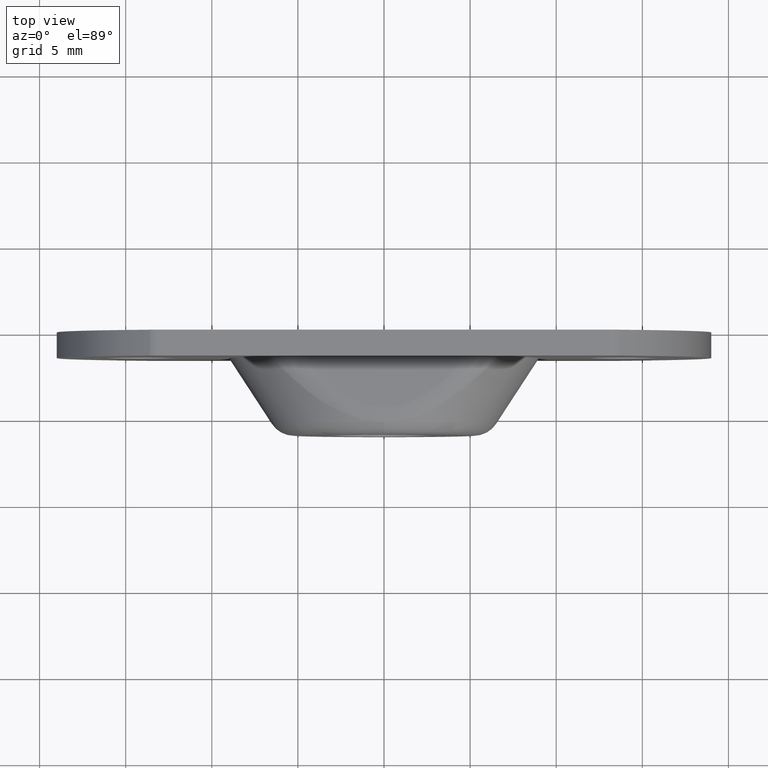
[diagram: clean part render]
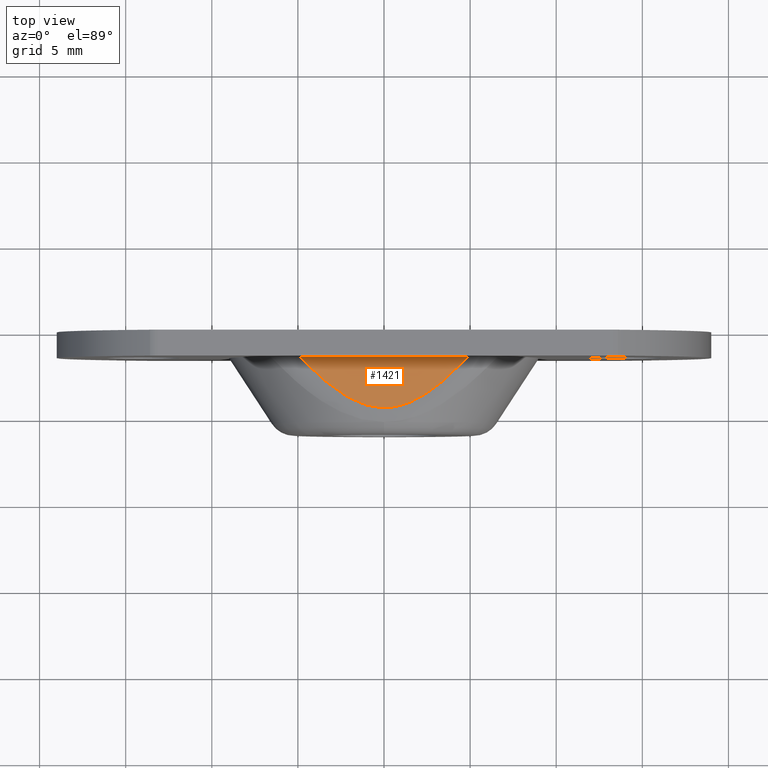
[diagram: same view with one face highlighted and labeled with its STEP entity id]
A machine part, top view. The second image highlights one B-rep face of the part: STEP entity #1421.
In plain terms, the highlighted planar face has unit normal (0, 0, 1).
Its self-contained STEP definition (entity closure, byte-faithful):
#9 = CARTESIAN_POINT ( 'NONE',  ( 1.906441237978952600, -4.012970140659631600, 6.750000000000002700 ) ) ;
#63 = ORIENTED_EDGE ( 'NONE', *, *, #271, .F. ) ;
#98 = CARTESIAN_POINT ( 'NONE',  ( -2.336191753414337900, -3.756723234469199200, 6.750000000000000900 ) ) ;
#124 = CARTESIAN_POINT ( 'NONE',  ( 3.140643309498446300, -3.187137751884457200, 6.750000000000000900 ) ) ;
#160 = B_SPLINE_CURVE_WITH_KNOTS ( 'NONE', 3,
 ( #979, #1100, #659, #1439, #765, #98, #353, #1008, #343, #1126, #455, #1233, #567, #1344, #680, #9, #790, #124, #896, #236, #1013, #349 ),
 .UNSPECIFIED., .F., .F.,
 ( 4, 2, 2, 2, 2, 2, 2, 2, 2, 2, 4 ),
 ( 1.388456241783856500E-018, 0.001484628465371410500, 0.002969256930742819600, 0.004453885396114229400, 0.005196199628799934300, 0.005938513861485638300, 0.006680828094171343200, 0.007423142326857048100, 0.008907770792228457100, 0.01039239925759986900, 0.01187702772297127800 ),
 .UNSPECIFIED. ) ;
#216 = DIRECTION ( 'NONE',  ( 0.0000000000000000000, 0.0000000000000000000, 1.000000000000000000 ) ) ;
#236 = CARTESIAN_POINT ( 'NONE',  ( 4.248482275594736500, -2.206582111265753500, 6.750000000000001800 ) ) ;
#271 = EDGE_CURVE ( 'NONE', #545, #816, #572, .T. ) ;
#315 = VECTOR ( 'NONE', #848, 1000.000000000000000 ) ;
#331 = ORIENTED_EDGE ( 'NONE', *, *, #1227, .T. ) ;
#343 = CARTESIAN_POINT ( 'NONE',  ( -0.9758463632488154600, -4.370451779888761700, 6.750000000000000900 ) ) ;
#349 = CARTESIAN_POINT ( 'NONE',  ( 4.939806075597530800, -1.499999999992952100, 6.750000000000000000 ) ) ;
#353 = CARTESIAN_POINT ( 'NONE',  ( -1.905688575810681000, -4.013829924311902900, 6.750000000000001800 ) ) ;
#455 = CARTESIAN_POINT ( 'NONE',  ( -0.2451819812851589500, -4.500266225722195500, 6.750000000000000900 ) ) ;
#540 = CARTESIAN_POINT ( 'NONE',  ( -4.939806075597539700, -1.499999999992952100, 6.750000000000000000 ) ) ;
#545 = VERTEX_POINT ( 'NONE', #540 ) ;
#552 = PLANE ( 'NONE',  #573 ) ;
#567 = CARTESIAN_POINT ( 'NONE',  ( 0.4974678146695057900, -4.472281264067278000, 6.750000000000000900 ) ) ;
#572 = LINE ( 'NONE', #963, #315 ) ;
#573 = AXIS2_PLACEMENT_3D ( 'NONE', #1105, #216, #1329 ) ;
#659 = CARTESIAN_POINT ( 'NONE',  ( -4.247109133135968900, -2.207909041526400400, 6.750000000000000900 ) ) ;
#680 = CARTESIAN_POINT ( 'NONE',  ( 1.219756527006157400, -4.292738803763187500, 6.750000000000000900 ) ) ;
#765 = CARTESIAN_POINT ( 'NONE',  ( -3.140125049521825100, -3.187288561375674100, 6.750000000000001800 ) ) ;
#790 = CARTESIAN_POINT ( 'NONE',  ( 2.330407601591822700, -3.760602522184504100, 6.750000000000000900 ) ) ;
#802 = EDGE_LOOP ( 'NONE', ( #63, #331 ) ) ;
#816 = VERTEX_POINT ( 'NONE', #1224 ) ;
#848 = DIRECTION ( 'NONE',  ( 1.000000000000000000, 0.0000000000000000000, 0.0000000000000000000 ) ) ;
#896 = CARTESIAN_POINT ( 'NONE',  ( 3.519323367005695100, -2.870809262978994100, 6.750000000000000900 ) ) ;
#963 = CARTESIAN_POINT ( 'NONE',  ( 28.06997129832040000, -1.499999999992952100, 6.750000000000000000 ) ) ;
#979 = CARTESIAN_POINT ( 'NONE',  ( -4.939806075597539700, -1.499999999992952100, 6.750000000000000000 ) ) ;
#1008 = CARTESIAN_POINT ( 'NONE',  ( -1.213223597571571100, -4.295119719039607100, 6.750000000000001800 ) ) ;
#1013 = CARTESIAN_POINT ( 'NONE',  ( 4.598533218514806000, -1.858204421607980700, 6.750000000000000000 ) ) ;
#1096 = FACE_OUTER_BOUND ( 'NONE', #802, .T. ) ;
#1100 = CARTESIAN_POINT ( 'NONE',  ( -4.598409724719205700, -1.858334042299199600, 6.750000000000001800 ) ) ;
#1105 = CARTESIAN_POINT ( 'NONE',  ( 28.06997129832040000, 200994.0000000000000, 6.750000000000000000 ) ) ;
#1126 = CARTESIAN_POINT ( 'NONE',  ( -0.4934969317178809500, -4.472841395650826600, 6.750000000000001800 ) ) ;
#1224 = CARTESIAN_POINT ( 'NONE',  ( 4.939806075597530800, -1.499999999992952100, 6.750000000000000000 ) ) ;
#1227 = EDGE_CURVE ( 'NONE', #545, #816, #160, .T. ) ;
#1233 = CARTESIAN_POINT ( 'NONE',  ( 0.2525698677520694100, -4.499729793275667700, 6.750000000000001800 ) ) ;
#1329 = DIRECTION ( 'NONE',  ( 1.000000000000000000, 0.0000000000000000000, 0.0000000000000000000 ) ) ;
#1344 = CARTESIAN_POINT ( 'NONE',  ( 0.9802170169279731400, -4.369236301926855900, 6.750000000000001800 ) ) ;
#1421 = ADVANCED_FACE ( 'NONE', ( #1096 ), #552, .T. ) ;
#1439 = CARTESIAN_POINT ( 'NONE',  ( -3.517939043640439400, -2.871993957437138700, 6.750000000000002700 ) ) ;